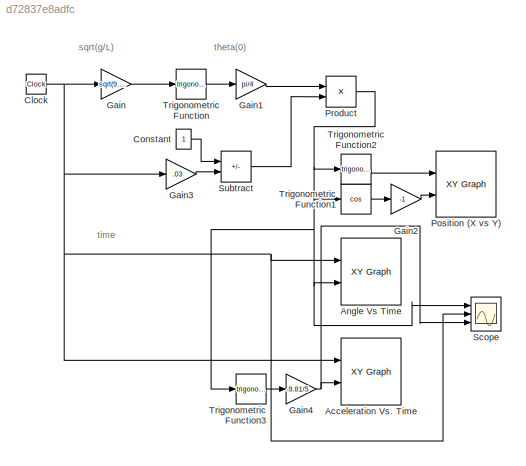
MODEL slx_d72837e8adfc
KIND model
CONFIG AbsTol = auto
CONFIG EnableMultiTasking = off
CONFIG FixedStep = auto
CONFIG MaxStep = .1
CONFIG MinStep = auto
CONFIG RelTol = 1e-3
CONFIG SampleTimeConstraint = Unconstrained
CONFIG Solver = VariableStepAuto
CONFIG SolverName = VariableStepAuto
CONFIG StartTime = 0.0
CONFIG StopTime = 30
BLOCK [Reference] Acceleration Vs. Time  REF=simulink/Sinks/XY Graph
  Ports = [2]
  SourceBlock = simulink/Sinks/XY Graph
  SourceProductBaseCode = SL
  SourceType = XY scope.
BLOCK [Reference] Angle Vs Time  REF=simulink/Sinks/XY Graph
  Ports = [2]
  SourceBlock = simulink/Sinks/XY Graph
  SourceProductBaseCode = SL
  SourceType = XY scope.
BLOCK [Clock] Clock
BLOCK [Constant] Constant
BLOCK [Gain] Gain
  Gain = sqrt(9.81/5)
BLOCK [Gain] Gain1
  Gain = pi/4
BLOCK [Gain] Gain2
  Gain = -1
BLOCK [Gain] Gain3
  Gain = .03
BLOCK [Gain] Gain4
  Gain = -9.81/5
BLOCK [Reference] Position (X vs Y)  REF=simulink/Sinks/XY Graph
  Ports = [2]
  SourceBlock = simulink/Sinks/XY Graph
  SourceProductBaseCode = SL
  SourceType = XY scope.
BLOCK [Product] Product
  Ports = [2, 1]
BLOCK [Scope] Scope
  Floating = off
  NumInputPorts = 3
  Ports = [3]
  ScopeSpecificationString = Simulink.scopes.TimeScopeBlockCfg('CurrentConfiguration', extmgr.ConfigurationSet(extmgr.Configuration('Core','General UI',true),extmgr.Configuration('Core','Source UI',true),extmgr.Configuration('Sources','WiredSimulink',true),extmgr.Configuration('Visuals','Time Domain',true,'SerializedDisplays',{struct('MinYLimReal','-5.26924','MaxYLimReal','33.9188','YLabelReal','','MinYLimMag','0.00000','MaxY...<+1343ch>
BLOCK [Sum] Subtract
  IconShape = rectangular
  Inputs = +-
  Ports = [2, 1]
BLOCK [Trigonometry] Trigonometric Function
  Ports = [1, 1]
BLOCK [Trigonometry] Trigonometric Function1
  Operator = cos
  Ports = [1, 1]
BLOCK [Trigonometry] Trigonometric Function2
  Ports = [1, 1]
BLOCK [Trigonometry] Trigonometric Function3
  Ports = [1, 1]
ANNOTATION (root): sqrt(g/L)
ANNOTATION (root): theta(0)
ANNOTATION (root): time
NET Clock:1 -> Acceleration Vs. Time:1, Angle Vs Time:1, Gain3:1, Gain:1, Scope:2
LINE Constant:1 -> Subtract:1
LINE Gain1:1 -> Product:1
LINE Gain2:1 -> Position (X vs Y):2
LINE Gain3:1 -> Subtract:2
NET Gain4:1 -> Acceleration Vs. Time:2, Scope:3
LINE Gain:1 -> Trigonometric Function:1
NET Product:1 -> Angle Vs Time:2, Scope:1, Trigonometric Function1:1, Trigonometric Function2:1, Trigonometric Function3:1
LINE Subtract:1 -> Product:2
LINE Trigonometric Function1:1 -> Gain2:1
LINE Trigonometric Function2:1 -> Position (X vs Y):1
LINE Trigonometric Function3:1 -> Gain4:1
LINE Trigonometric Function:1 -> Gain1:1
note: NET lines group one-source signal fan-out (src -> all destinations, sorted); 1:1 wires keep LINE
